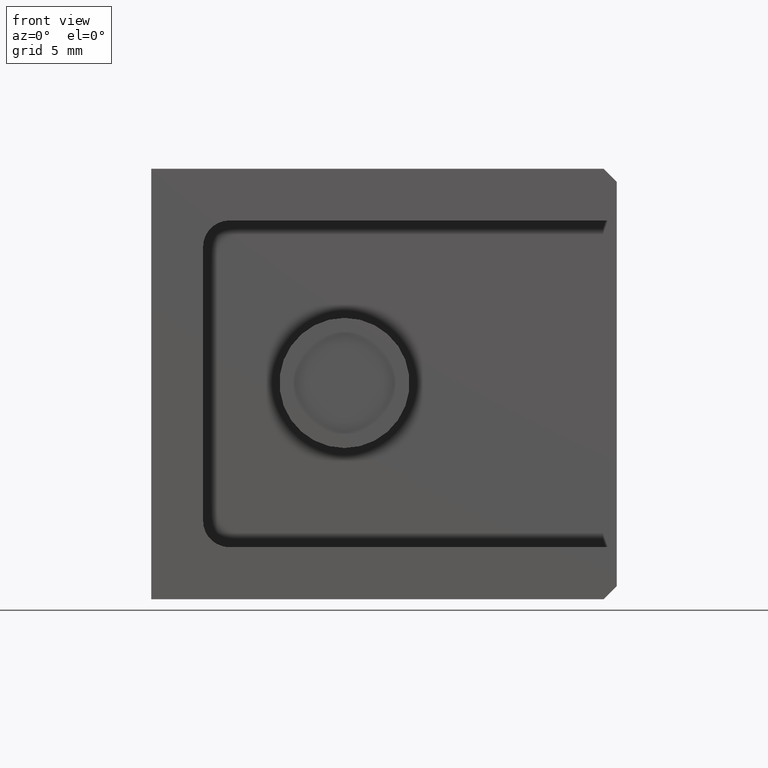
[diagram: clean part render]
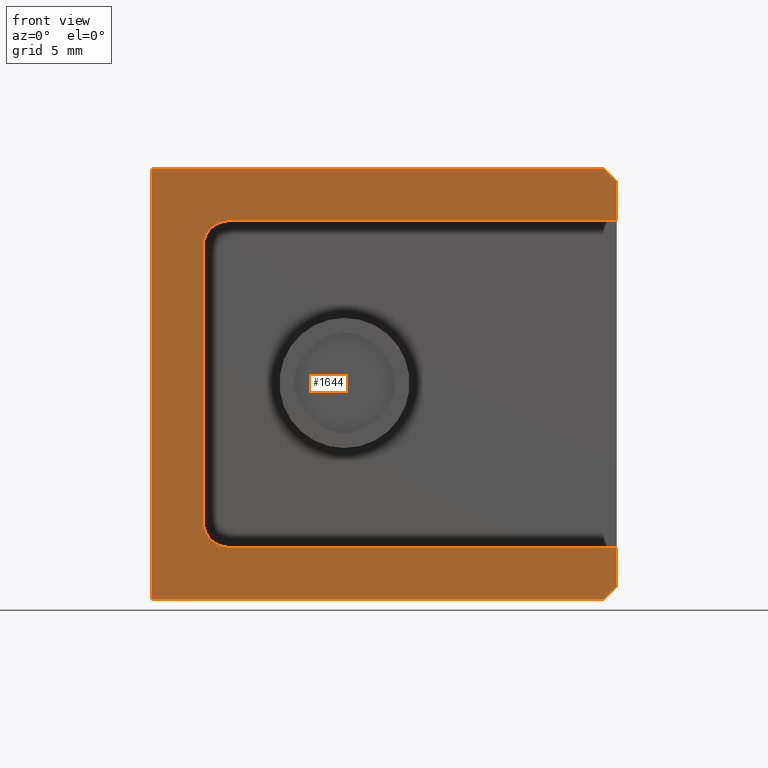
[diagram: same view with one face highlighted and labeled with its STEP entity id]
A machine part, front view. The second image highlights one B-rep face of the part: STEP entity #1644.
In plain terms, the highlighted planar face has unit normal (0, 1, 0).
Its self-contained STEP definition (entity closure, byte-faithful):
#15 = CARTESIAN_POINT ( 'NONE',  ( -0.5222671711059315700, 0.0000000000000000000, 0.4879345026468290800 ) ) ;
#20 = VECTOR ( 'NONE', #2485, 39.37007874015748100 ) ;
#33 = VERTEX_POINT ( 'NONE', #2371 ) ;
#61 = CARTESIAN_POINT ( 'NONE',  ( 0.5377328288940683700, 0.0000000000000000000, -0.3740654973531709600 ) ) ;
#73 = EDGE_CURVE ( 'NONE', #1029, #1280, #1458, .T. ) ;
#196 = PLANE ( 'NONE',  #671 ) ;
#197 = LINE ( 'NONE', #1284, #2032 ) ;
#247 = DIRECTION ( 'NONE',  ( 5.787813545898858700E-016, 0.0000000000000000000, -1.000000000000000000 ) ) ;
#261 = CARTESIAN_POINT ( 'NONE',  ( 0.5077328288940683400, 0.0000000000000000000, -0.4920654973531710100 ) ) ;
#323 = EDGE_CURVE ( 'NONE', #1863, #1113, #1303, .T. ) ;
#352 = CARTESIAN_POINT ( 'NONE',  ( 0.5377328288940684800, 0.0000000000000000000, 0.4579345026468293300 ) ) ;
#377 = DIRECTION ( 'NONE',  ( 0.0000000000000000000, 0.0000000000000000000, -1.000000000000000000 ) ) ;
#421 = VECTOR ( 'NONE', #783, 39.37007874015748100 ) ;
#430 = VERTEX_POINT ( 'NONE', #1693 ) ;
#442 = LINE ( 'NONE', #2097, #20 ) ;
#475 = LINE ( 'NONE', #61, #1944 ) ;
#486 = VERTEX_POINT ( 'NONE', #1561 ) ;
#536 = ORIENTED_EDGE ( 'NONE', *, *, #323, .T. ) ;
#553 = LINE ( 'NONE', #2373, #951 ) ;
#626 = LINE ( 'NONE', #2081, #683 ) ;
#671 = AXIS2_PLACEMENT_3D ( 'NONE', #2149, #978, #1167 ) ;
#683 = VECTOR ( 'NONE', #1131, 39.37007874015748100 ) ;
#708 = ORIENTED_EDGE ( 'NONE', *, *, #73, .F. ) ;
#734 = CARTESIAN_POINT ( 'NONE',  ( 0.5377328288940679300, 0.0000000000000000000, 0.4579345026468293300 ) ) ;
#783 = DIRECTION ( 'NONE',  ( -0.0000000000000000000, -0.0000000000000000000, 1.000000000000000000 ) ) ;
#786 = VERTEX_POINT ( 'NONE', #261 ) ;
#823 = EDGE_CURVE ( 'NONE', #33, #906, #898, .T. ) ;
#843 = ORIENTED_EDGE ( 'NONE', *, *, #2040, .F. ) ;
#885 = CARTESIAN_POINT ( 'NONE',  ( -0.3442671711059315800, 0.0000000000000000000, 0.3699345026468290900 ) ) ;
#898 = CIRCLE ( 'NONE', #975, 0.05999999999999997700 ) ;
#906 = VERTEX_POINT ( 'NONE', #885 ) ;
#916 = EDGE_LOOP ( 'NONE', ( #1986, #1220, #1887, #708, #843, #2438, #1583, #1809, #536, #1002, #2505, #1928 ) ) ;
#935 = VERTEX_POINT ( 'NONE', #352 ) ;
#951 = VECTOR ( 'NONE', #1409, 39.37007874015748100 ) ;
#973 = EDGE_CURVE ( 'NONE', #935, #486, #1020, .T. ) ;
#975 = AXIS2_PLACEMENT_3D ( 'NONE', #2266, #1087, #1676 ) ;
#978 = DIRECTION ( 'NONE',  ( 0.0000000000000000000, 1.000000000000000000, 0.0000000000000000000 ) ) ;
#1002 = ORIENTED_EDGE ( 'NONE', *, *, #1879, .F. ) ;
#1020 = LINE ( 'NONE', #734, #1209 ) ;
#1029 = VERTEX_POINT ( 'NONE', #1903 ) ;
#1045 = DIRECTION ( 'NONE',  ( -1.000000000000000000, 0.0000000000000000000, 1.450025474344088800E-016 ) ) ;
#1067 = CARTESIAN_POINT ( 'NONE',  ( 0.5377328288940683700, 0.0000000000000000000, -0.3740654973531709600 ) ) ;
#1087 = DIRECTION ( 'NONE',  ( 0.0000000000000000000, 1.000000000000000000, 0.0000000000000000000 ) ) ;
#1091 = DIRECTION ( 'NONE',  ( 0.0000000000000000000, 1.000000000000000000, 0.0000000000000000000 ) ) ;
#1113 = VERTEX_POINT ( 'NONE', #1743 ) ;
#1131 = DIRECTION ( 'NONE',  ( 0.0000000000000000000, 0.0000000000000000000, -1.000000000000000000 ) ) ;
#1145 = CARTESIAN_POINT ( 'NONE',  ( -0.4042671711059315800, 0.0000000000000000000, 0.3699345026468290900 ) ) ;
#1167 = DIRECTION ( 'NONE',  ( 0.0000000000000000000, -0.0000000000000000000, 1.000000000000000000 ) ) ;
#1193 = CARTESIAN_POINT ( 'NONE',  ( 0.5377328288940684800, 0.0000000000000000000, -0.4920654973531710100 ) ) ;
#1209 = VECTOR ( 'NONE', #1337, 39.37007874015748100 ) ;
#1220 = ORIENTED_EDGE ( 'NONE', *, *, #973, .T. ) ;
#1237 = LINE ( 'NONE', #1193, #1475 ) ;
#1239 = EDGE_CURVE ( 'NONE', #1320, #430, #475, .T. ) ;
#1280 = VERTEX_POINT ( 'NONE', #2002 ) ;
#1284 = CARTESIAN_POINT ( 'NONE',  ( -0.4042671711059315800, 0.0000000000000000000, -0.3740654973531709600 ) ) ;
#1286 = CARTESIAN_POINT ( 'NONE',  ( -0.3442671711059315800, 0.0000000000000000000, -0.3140654973531709600 ) ) ;
#1298 = LINE ( 'NONE', #1145, #2152 ) ;
#1303 = CIRCLE ( 'NONE', #1406, 0.06000000000000001200 ) ;
#1311 = DIRECTION ( 'NONE',  ( 1.000000000000000000, 0.0000000000000000000, 0.0000000000000000000 ) ) ;
#1320 = VERTEX_POINT ( 'NONE', #1067 ) ;
#1337 = DIRECTION ( 'NONE',  ( -0.7071067811865468000, -0.0000000000000000000, 0.7071067811865483500 ) ) ;
#1338 = CARTESIAN_POINT ( 'NONE',  ( -0.3442671711059315800, 0.0000000000000000000, -0.3740654973531709600 ) ) ;
#1359 = VECTOR ( 'NONE', #1045, 39.37007874015748100 ) ;
#1406 = AXIS2_PLACEMENT_3D ( 'NONE', #1286, #1091, #1672 ) ;
#1409 = DIRECTION ( 'NONE',  ( 0.7071067811865443500, -0.0000000000000000000, 0.7071067811865507900 ) ) ;
#1458 = LINE ( 'NONE', #15, #421 ) ;
#1475 = VECTOR ( 'NONE', #1558, 39.37007874015748100 ) ;
#1558 = DIRECTION ( 'NONE',  ( -1.000000000000000000, 0.0000000000000000000, 1.932911316271884200E-016 ) ) ;
#1561 = CARTESIAN_POINT ( 'NONE',  ( 0.5077328288940683400, 0.0000000000000000000, 0.4879345026468289700 ) ) ;
#1583 = ORIENTED_EDGE ( 'NONE', *, *, #1239, .F. ) ;
#1644 = ADVANCED_FACE ( 'NONE', ( #1755 ), #196, .F. ) ;
#1672 = DIRECTION ( 'NONE',  ( 0.0000000000000000000, 0.0000000000000000000, 1.000000000000000000 ) ) ;
#1676 = DIRECTION ( 'NONE',  ( 0.0000000000000000000, 0.0000000000000000000, 1.000000000000000000 ) ) ;
#1693 = CARTESIAN_POINT ( 'NONE',  ( 0.5377328288940684800, 0.0000000000000000000, -0.4620654973531706500 ) ) ;
#1743 = CARTESIAN_POINT ( 'NONE',  ( -0.4042671711059315800, 0.0000000000000000000, -0.3140654973531710200 ) ) ;
#1755 = FACE_OUTER_BOUND ( 'NONE', #916, .T. ) ;
#1763 = EDGE_CURVE ( 'NONE', #1863, #1320, #197, .T. ) ;
#1809 = ORIENTED_EDGE ( 'NONE', *, *, #1763, .F. ) ;
#1863 = VERTEX_POINT ( 'NONE', #1338 ) ;
#1874 = LINE ( 'NONE', #2222, #1359 ) ;
#1879 = EDGE_CURVE ( 'NONE', #33, #1113, #1298, .T. ) ;
#1887 = ORIENTED_EDGE ( 'NONE', *, *, #1905, .F. ) ;
#1903 = CARTESIAN_POINT ( 'NONE',  ( -0.5222671711059315700, 0.0000000000000000000, -0.4920654973531708400 ) ) ;
#1905 = EDGE_CURVE ( 'NONE', #1280, #486, #442, .T. ) ;
#1922 = CARTESIAN_POINT ( 'NONE',  ( 0.5377328288940684800, 0.0000000000000000000, 0.3699345026468289800 ) ) ;
#1928 = ORIENTED_EDGE ( 'NONE', *, *, #2124, .F. ) ;
#1944 = VECTOR ( 'NONE', #247, 39.37007874015748100 ) ;
#1986 = ORIENTED_EDGE ( 'NONE', *, *, #2205, .F. ) ;
#2002 = CARTESIAN_POINT ( 'NONE',  ( -0.5222671711059315700, 0.0000000000000000000, 0.4879345026468290800 ) ) ;
#2032 = VECTOR ( 'NONE', #1311, 39.37007874015748100 ) ;
#2040 = EDGE_CURVE ( 'NONE', #786, #1029, #1237, .T. ) ;
#2081 = CARTESIAN_POINT ( 'NONE',  ( 0.5377328288940684800, 0.0000000000000000000, 0.4879345026468289700 ) ) ;
#2097 = CARTESIAN_POINT ( 'NONE',  ( 0.5377328288940684800, 0.0000000000000000000, 0.4879345026468289700 ) ) ;
#2124 = EDGE_CURVE ( 'NONE', #2191, #906, #1874, .T. ) ;
#2149 = CARTESIAN_POINT ( 'NONE',  ( 0.0000000000000000000, 0.0000000000000000000, 0.0000000000000000000 ) ) ;
#2152 = VECTOR ( 'NONE', #377, 39.37007874015748100 ) ;
#2191 = VERTEX_POINT ( 'NONE', #1922 ) ;
#2205 = EDGE_CURVE ( 'NONE', #935, #2191, #626, .T. ) ;
#2222 = CARTESIAN_POINT ( 'NONE',  ( 0.5377328288940684800, 0.0000000000000000000, 0.3699345026468289800 ) ) ;
#2266 = CARTESIAN_POINT ( 'NONE',  ( -0.3442671711059315800, 0.0000000000000000000, 0.3099345026468290900 ) ) ;
#2371 = CARTESIAN_POINT ( 'NONE',  ( -0.4042671711059315800, 0.0000000000000000000, 0.3099345026468290900 ) ) ;
#2373 = CARTESIAN_POINT ( 'NONE',  ( 0.5077328288940683400, 0.0000000000000000000, -0.4920654973531710100 ) ) ;
#2438 = ORIENTED_EDGE ( 'NONE', *, *, #2464, .T. ) ;
#2464 = EDGE_CURVE ( 'NONE', #786, #430, #553, .T. ) ;
#2485 = DIRECTION ( 'NONE',  ( 1.000000000000000000, -0.0000000000000000000, -1.288607544181256200E-016 ) ) ;
#2505 = ORIENTED_EDGE ( 'NONE', *, *, #823, .T. ) ;